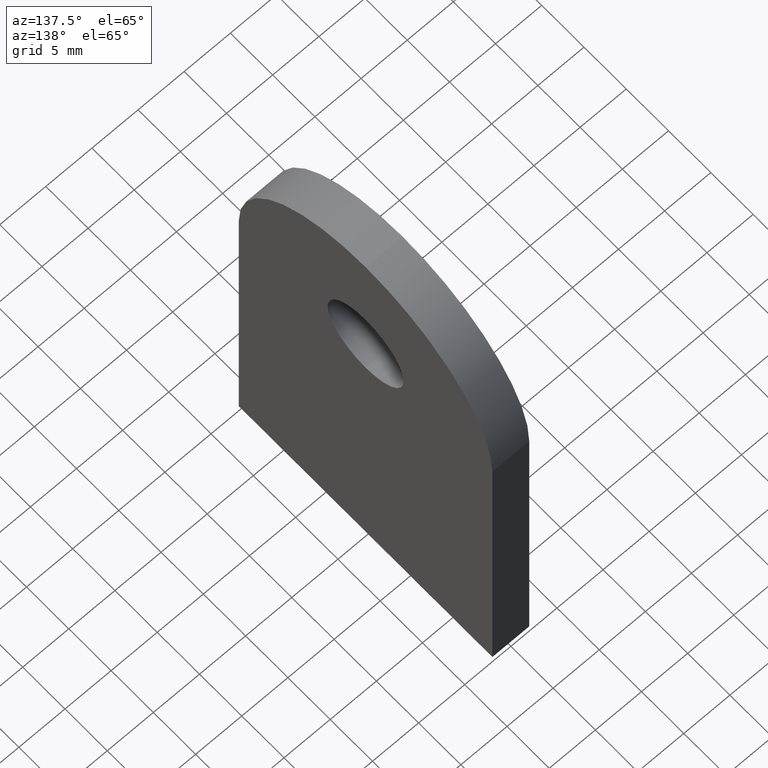
[diagram: clean part render]
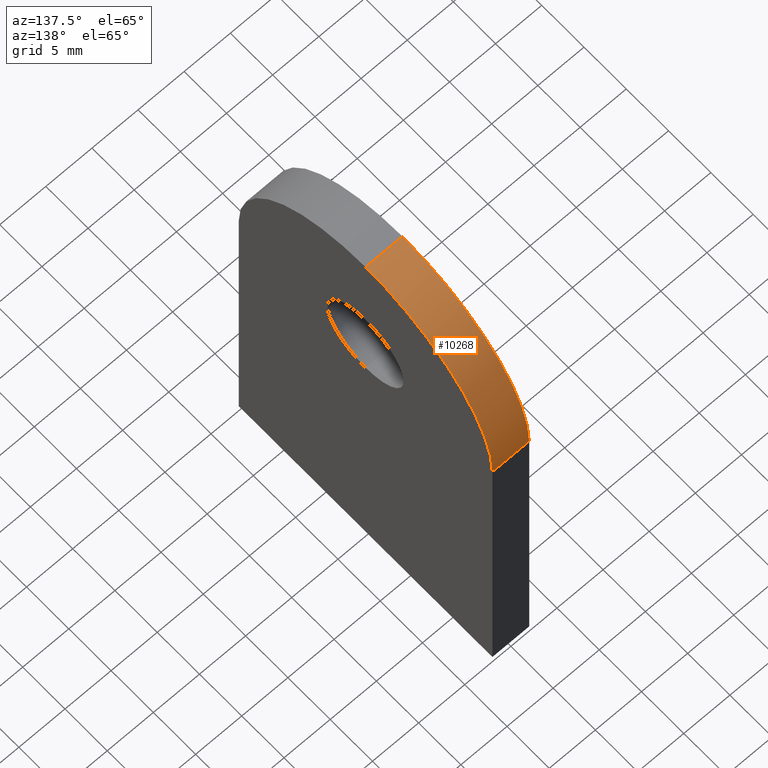
[diagram: same view with one face highlighted and labeled with its STEP entity id]
A machine part, auxiliary view. The second image highlights one B-rep face of the part: STEP entity #10268.
In plain terms, the highlighted cylindrical surface (partial cylindrical patch) has radius 15 mm, axis along (-1, -0, -0).
Its self-contained STEP definition (entity closure, byte-faithful):
#185 = LINE ( 'NONE', #9791, #4618 ) ;
#761 = CARTESIAN_POINT ( 'NONE',  ( 2.000000000000000000, 0.0000000000000000000, 34.99999999999999300 ) ) ;
#794 = CARTESIAN_POINT ( 'NONE',  ( 2.000000000000000000, 0.0000000000000000000, 34.99999999999999300 ) ) ;
#1624 = CYLINDRICAL_SURFACE ( 'NONE', #1828, 15.00000000000000000 ) ;
#1828 = AXIS2_PLACEMENT_3D ( 'NONE', #761, #4718, #9825 ) ;
#2109 = FACE_OUTER_BOUND ( 'NONE', #6641, .T. ) ;
#2638 = CARTESIAN_POINT ( 'NONE',  ( -2.000000000000000000, 0.0000000000000000000, 34.99999999999999300 ) ) ;
#2958 = CARTESIAN_POINT ( 'NONE',  ( -2.000000000000000000, 0.0000000000000000000, 49.99999999999999300 ) ) ;
#3337 = CARTESIAN_POINT ( 'NONE',  ( 2.000000000000000000, 14.99999999999999800, 34.99999999999999300 ) ) ;
#3799 = DIRECTION ( 'NONE',  ( -1.000000000000000000, -0.0000000000000000000, -0.0000000000000000000 ) ) ;
#3846 = ORIENTED_EDGE ( 'NONE', *, *, #12121, .T. ) ;
#4598 = DIRECTION ( 'NONE',  ( -1.000000000000000000, -0.0000000000000000000, 0.0000000000000000000 ) ) ;
#4618 = VECTOR ( 'NONE', #3799, 1000.000000000000000 ) ;
#4718 = DIRECTION ( 'NONE',  ( -1.000000000000000000, -0.0000000000000000000, -0.0000000000000000000 ) ) ;
#4827 = DIRECTION ( 'NONE',  ( -1.000000000000000000, -0.0000000000000000000, 0.0000000000000000000 ) ) ;
#4864 = EDGE_CURVE ( 'NONE', #9435, #6583, #6778, .T. ) ;
#4919 = CIRCLE ( 'NONE', #4959, 15.00000000000000000 ) ;
#4959 = AXIS2_PLACEMENT_3D ( 'NONE', #794, #4827, #11962 ) ;
#5779 = VERTEX_POINT ( 'NONE', #3337 ) ;
#5849 = DIRECTION ( 'NONE',  ( -1.000000000000000000, -0.0000000000000000000, -0.0000000000000000000 ) ) ;
#6583 = VERTEX_POINT ( 'NONE', #2958 ) ;
#6602 = CARTESIAN_POINT ( 'NONE',  ( 2.000000000000000000, 0.0000000000000000000, 49.99999999999999300 ) ) ;
#6641 = EDGE_LOOP ( 'NONE', ( #10036, #8046, #3846, #11634 ) ) ;
#6778 = LINE ( 'NONE', #10946, #11784 ) ;
#7492 = CIRCLE ( 'NONE', #8589, 15.00000000000000000 ) ;
#8046 = ORIENTED_EDGE ( 'NONE', *, *, #11616, .T. ) ;
#8589 = AXIS2_PLACEMENT_3D ( 'NONE', #2638, #4598, #12628 ) ;
#9341 = VERTEX_POINT ( 'NONE', #9351 ) ;
#9351 = CARTESIAN_POINT ( 'NONE',  ( -2.000000000000000000, 14.99999999999999800, 34.99999999999999300 ) ) ;
#9435 = VERTEX_POINT ( 'NONE', #6602 ) ;
#9791 = CARTESIAN_POINT ( 'NONE',  ( 2.000000000000000000, 14.99999999999999800, 34.99999999999999300 ) ) ;
#9825 = DIRECTION ( 'NONE',  ( 0.0000000000000000000, 0.0000000000000000000, 1.000000000000000000 ) ) ;
#10036 = ORIENTED_EDGE ( 'NONE', *, *, #4864, .F. ) ;
#10235 = EDGE_CURVE ( 'NONE', #6583, #9341, #7492, .T. ) ;
#10268 = ADVANCED_FACE ( 'NONE', ( #2109 ), #1624, .T. ) ;
#10946 = CARTESIAN_POINT ( 'NONE',  ( 2.000000000000000000, 0.0000000000000000000, 49.99999999999999300 ) ) ;
#11616 = EDGE_CURVE ( 'NONE', #9435, #5779, #4919, .T. ) ;
#11634 = ORIENTED_EDGE ( 'NONE', *, *, #10235, .F. ) ;
#11784 = VECTOR ( 'NONE', #5849, 1000.000000000000000 ) ;
#11962 = DIRECTION ( 'NONE',  ( 0.0000000000000000000, 0.0000000000000000000, 1.000000000000000000 ) ) ;
#12121 = EDGE_CURVE ( 'NONE', #5779, #9341, #185, .T. ) ;
#12628 = DIRECTION ( 'NONE',  ( 0.0000000000000000000, 0.0000000000000000000, 1.000000000000000000 ) ) ;